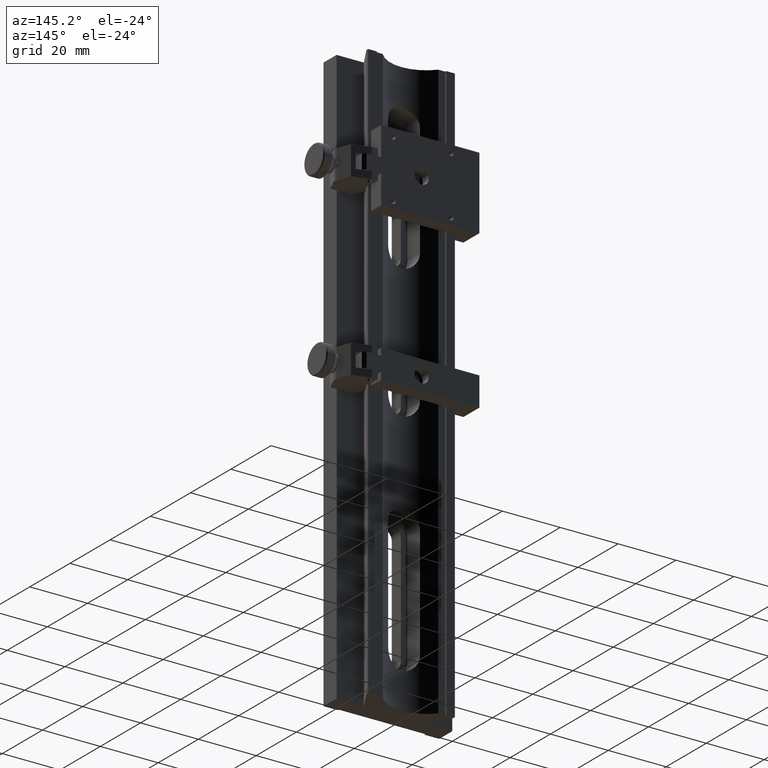
[diagram: clean part render]
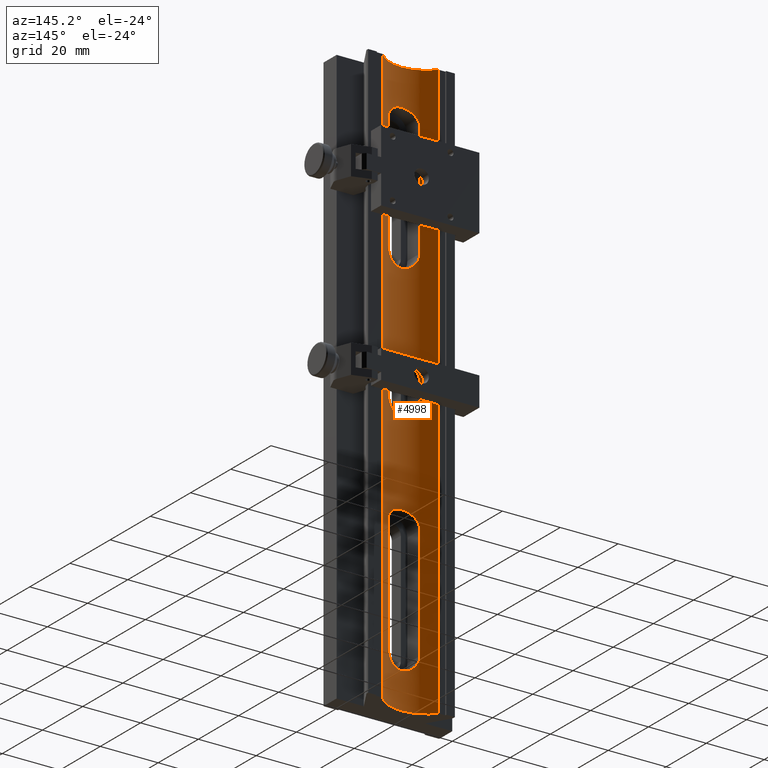
[diagram: same view with one face highlighted and labeled with its STEP entity id]
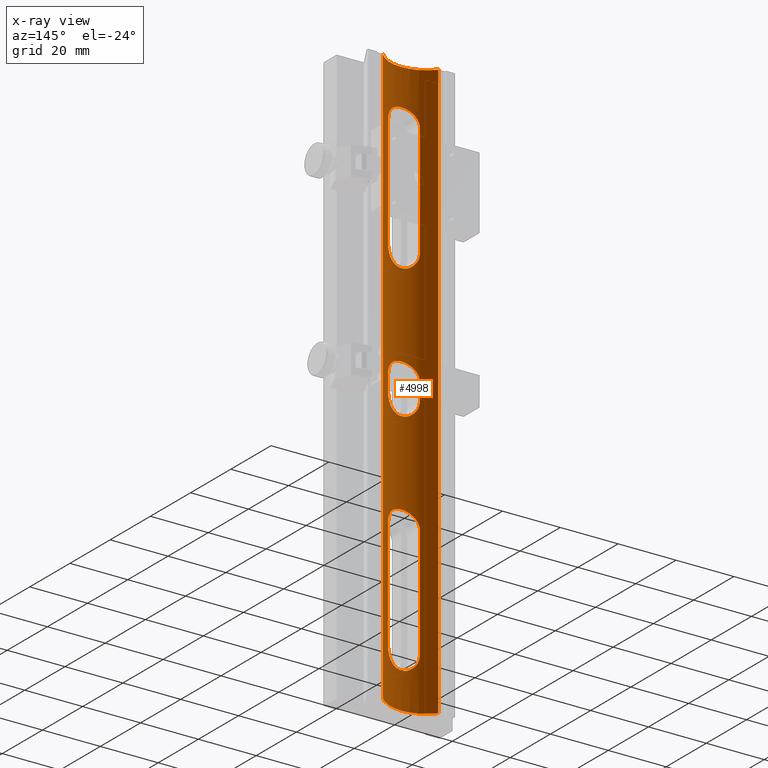
[diagram: x-ray of the same camera — body ghosted, the highlighted face saturated]
A machine part, auxiliary view. The second image highlights one B-rep face of the part: STEP entity #4998.
The next image is the same camera in x-ray: the body ghosted, the highlighted face saturated — about 0% of this face is hidden behind the body in this view.
In plain terms, the highlighted cylindrical surface (partial cylindrical patch) has radius 12.5 mm, axis along (-0, 0, -1).
Its self-contained STEP definition (entity closure, byte-faithful):
#3 = CARTESIAN_POINT ( 'NONE',  ( -5.463371493397496614, -3.729551182237842877, -4.756877311680623777 ) ) ;
#9 = CARTESIAN_POINT ( 'NONE',  ( -2.452909808896963195, 7.936080065970314124, -3.738324891094070956 ) ) ;
#19 = CARTESIAN_POINT ( 'NONE',  ( 5.320886567516182275, 83.43834597298382505, -4.688748875783183223 ) ) ;
#31 = CARTESIAN_POINT ( 'NONE',  ( -2.452909808896961863, 86.93608006597030169, -3.738324891094070956 ) ) ;
#53 = CARTESIAN_POINT ( 'NONE',  ( 5.499999999999998224, -2.999999999999999112, -4.775027839678173791 ) ) ;
#89 = CARTESIAN_POINT ( 'NONE',  ( -9.604686356149272797, 100.0000000000000000, -7.999999999999998224 ) ) ;
#103 = CARTESIAN_POINT ( 'NONE',  ( 4.767077514528521576, 84.76636520187403789, -4.442719698820006613 ) ) ;
#105 = ORIENTED_EDGE ( 'NONE', *, *, #971, .T. ) ;
#108 = CARTESIAN_POINT ( 'NONE',  ( 3.359488323669840515, -7.369307654140524022, -3.956037097100739697 ) ) ;
#121 = DIRECTION ( 'NONE',  ( 0.000000000000000000, 0.000000000000000000, 1.000000000000000000 ) ) ;
#138 = CARTESIAN_POINT ( 'NONE',  ( -5.499999999999996447, -43.00000000000000711, -4.775027839678172015 ) ) ;
#140 = CARTESIAN_POINT ( 'NONE',  ( 4.140132957479329967, -85.63800679282627470, -4.202588055097332465 ) ) ;
#152 = LINE ( 'NONE', #6233, #5776 ) ;
#172 = CARTESIAN_POINT ( 'NONE',  ( 2.455686713790328213, -38.06565600194460330, -3.739010744038295364 ) ) ;
#201 = CARTESIAN_POINT ( 'NONE',  ( -4.664130054569976203, 84.92024005721965807, -4.402269544413258906 ) ) ;
#245 = VERTEX_POINT ( 'NONE', #1573 ) ;
#249 = CARTESIAN_POINT ( 'NONE',  ( 5.499999999999992895, 43.00000000000000711, -4.775027839678172015 ) ) ;
#265 = CARTESIAN_POINT ( 'NONE',  ( -4.927301002126863949, 84.45025479802640689, -4.511737245493968373 ) ) ;
#276 = LINE ( 'NONE', #5670, #2803 ) ;
#281 = CARTESIAN_POINT ( 'NONE',  ( 5.004172744658497152, 40.71086644942840138, -4.545134261420408883 ) ) ;
#344 = CARTESIAN_POINT ( 'NONE',  ( 2.452909808896956090, 38.06391993402971252, -3.738324891094068292 ) ) ;
#368 = CARTESIAN_POINT ( 'NONE',  ( 1.436019803944283968, 37.67844251871879635, -3.577646812477410787 ) ) ;
#426 = CARTESIAN_POINT ( 'NONE',  ( -4.015897234029110585, -85.76216194631959411, -4.161930955679303601 ) ) ;
#428 = CARTESIAN_POINT ( 'NONE',  ( 4.767077514528521576, 5.766365201874045887, -4.442719698820007501 ) ) ;
#446 = VECTOR ( 'NONE', #5460, 1000.000000000000000 ) ;
#461 = CARTESIAN_POINT ( 'NONE',  ( -5.320886567516187604, -83.43834597298386768, -4.688748875783188552 ) ) ;
#462 = CARTESIAN_POINT ( 'NONE',  ( 5.213099869976741907, 4.789608110793816209, -4.637932341751267451 ) ) ;
#494 = CARTESIAN_POINT ( 'NONE',  ( 2.452909808896958754, -86.93608006597033011, -3.738324891094071400 ) ) ;
#495 = CARTESIAN_POINT ( 'NONE',  ( 1.791243918881801678, 8.203307872313336802, -3.627770058525933816 ) ) ;
#503 = CARTESIAN_POINT ( 'NONE',  ( 4.757545737347823156, -5.765466018206599763, -4.440405074606874614 ) ) ;
#517 = CARTESIAN_POINT ( 'NONE',  ( 5.499999999999999112, 82.36839926321866301, -4.775027839678175567 ) ) ;
#528 = CARTESIAN_POINT ( 'NONE',  ( -4.927301002126866614, 5.450254798026421987, -4.511737245493970150 ) ) ;
#555 = CARTESIAN_POINT ( 'NONE',  ( -3.359488323669839183, -38.63069234585947953, -3.956037097100740585 ) ) ;
#556 = CARTESIAN_POINT ( 'NONE',  ( -1.266012518167691336, -8.355390716780018323, -3.562992296828746852 ) ) ;
#561 = CARTESIAN_POINT ( 'NONE',  ( 3.365233826132080885, 7.365085888891295340, -3.957591329563105997 ) ) ;
#582 = CARTESIAN_POINT ( 'NONE',  ( 4.468409719719223183, 85.21173873340197247, -4.325465594975087313 ) ) ;
#588 = CARTESIAN_POINT ( 'NONE',  ( 0.9034421561682076662, -8.428312260402236689, -3.531417676067726052 ) ) ;
#603 = CARTESIAN_POINT ( 'NONE',  ( -5.499999999999996447, -43.00000000000000711, -4.775027839678172015 ) ) ;
#620 = CARTESIAN_POINT ( 'NONE',  ( 4.767077514528521576, -40.23363479812595500, -4.442719698820004837 ) ) ;
#656 = CARTESIAN_POINT ( 'NONE',  ( 4.015897234029108809, -39.23783805368039879, -4.161930955679307154 ) ) ;
#702 = CARTESIAN_POINT ( 'NONE',  ( -2.407148620655123076E-16, 100.0000000000000000, -16.00000000000000000 ) ) ;
#713 = VERTEX_POINT ( 'NONE', #2896 ) ;
#770 = CARTESIAN_POINT ( 'NONE',  ( -0.7318247305610963149, 37.53681207847811407, -3.516321624483726982 ) ) ;
#789 = VERTEX_POINT ( 'NONE', #1530 ) ;
#805 = FACE_OUTER_BOUND ( 'NONE', #1249, .T. ) ;
#819 = LINE ( 'NONE', #3440, #446 ) ;
#835 = CARTESIAN_POINT ( 'NONE',  ( -4.935953207741845539, 40.54735380139051415, -4.514820086043214609 ) ) ;
#868 = CARTESIAN_POINT ( 'NONE',  ( 5.211065515426126282, 41.20492193014368354, -4.637008669236490022 ) ) ;
#920 = LINE ( 'NONE', #3071, #2859 ) ;
#926 = CARTESIAN_POINT ( 'NONE',  ( -0.3716744979042064245, -87.49950246139496812, -3.500218916825645898 ) ) ;
#971 = EDGE_CURVE ( 'NONE', #2517, #5820, #1742, .T. ) ;
#1006 = EDGE_CURVE ( 'NONE', #1562, #2871, #276, .T. ) ;
#1024 = CARTESIAN_POINT ( 'NONE',  ( -1.791243918881801012, -8.203307872313335025, -3.627770058525932484 ) ) ;
#1027 = CARTESIAN_POINT ( 'NONE',  ( -4.767077514528525128, -84.76636520187400947, -4.442719698820010166 ) ) ;
#1028 = CARTESIAN_POINT ( 'NONE',  ( 1.266012518167691558, 8.355390716780021876, -3.562992296828747740 ) ) ;
#1051 = CARTESIAN_POINT ( 'NONE',  ( 1.791243918881798791, 87.20330787231333147, -3.627770058525933816 ) ) ;
#1056 = CARTESIAN_POINT ( 'NONE',  ( 1.960439013360200988, -37.85814081710194046, -3.653553443696078151 ) ) ;
#1057 = CARTESIAN_POINT ( 'NONE',  ( -2.769513885777391771, -7.765350601836939148, -3.806797052175196150 ) ) ;
#1063 = CARTESIAN_POINT ( 'NONE',  ( -5.463268972524251588, 3.732885129696532633, -4.756815190711167318 ) ) ;
#1071 = CARTESIAN_POINT ( 'NONE',  ( 5.211065515426134276, -4.795078069856327119, -4.637008669236497127 ) ) ;
#1082 = B_SPLINE_CURVE_WITH_KNOTS ( 'NONE', 3,
 ( #3490, #5078, #2955, #5569, #462, #3020, #428, #3086, #3989, #4488, #5107, #3456, #561, #5016, #4050, #3955, #495, #5998, #1028, #2490, #6057, #2459, #5540, #2020, #1430, #4521, #1526, #9, #6091, #4084, #3559, #2553, #4582, #3053, #2521, #528, #6485, #5507, #1560, #1063, #1962, #6517 ),
 .UNSPECIFIED., .F., .F.,
 ( 4, 2, 2, 2, 2, 2, 2, 2, 2, 2, 2, 2, 2, 2, 2, 2, 2, 2, 2, 2, 4 ),
 ( 8.673617379884034509E-19, 0.001088223458269292664, 0.002176446916538584461, 0.003264670374807876474, 0.003808782103942523999, 0.004352893833077172391, 0.005441117291346465705, 0.006529340749615759887, 0.007073452478750406544, 0.007617564207885053201, 0.008705787666154346516, 0.009249899395288994908, 0.009794011124423641565, 0.01088223458269293488, 0.01197045804096222993, 0.01305868149923152324, 0.01414690495750081656, 0.01469101668663546321, 0.01523512841577010814, 0.01632335187403940319, 0.01741157533230869303 ),
 .UNSPECIFIED. ) ;
#1089 = CARTESIAN_POINT ( 'NONE',  ( -4.365141366191275019, -39.63500587160994826, -4.284993196813131178 ) ) ;
#1123 = CARTESIAN_POINT ( 'NONE',  ( 3.640810629803842957, -38.86240765947395914, -4.039074654214520166 ) ) ;
#1125 = CARTESIAN_POINT ( 'NONE',  ( 0.1746818680405348989, -8.500241227327972382, -3.499893860054751116 ) ) ;
#1151 = CARTESIAN_POINT ( 'NONE',  ( -5.500000000000003553, -81.99999999999998579, -4.775027839678175567 ) ) ;
#1169 = DIRECTION ( 'NONE',  ( 0.000000000000000000, 0.000000000000000000, 1.000000000000000000 ) ) ;
#1171 = ORIENTED_EDGE ( 'NONE', *, *, #5340, .F. ) ;
#1204 = EDGE_LOOP ( 'NONE', ( #1171, #2426, #6240, #5711 ) ) ;
#1233 = VECTOR ( 'NONE', #3669, 1000.000000000000000 ) ;
#1235 = EDGE_CURVE ( 'NONE', #2843, #4762, #1576, .T. ) ;
#1249 = EDGE_LOOP ( 'NONE', ( #4637, #105, #2922, #4670 ) ) ;
#1295 = CARTESIAN_POINT ( 'NONE',  ( -3.638581638029505960, 86.13962776027645418, -4.038379994050421473 ) ) ;
#1309 = CARTESIAN_POINT ( 'NONE',  ( -1.444167463114252481, 37.68988249381514777, -3.582471709711287922 ) ) ;
#1340 = CARTESIAN_POINT ( 'NONE',  ( -5.213099869976747236, 41.21039188920619267, -4.637932341751268339 ) ) ;
#1360 = ORIENTED_EDGE ( 'NONE', *, *, #1887, .T. ) ;
#1397 = CARTESIAN_POINT ( 'NONE',  ( -5.500000000000003553, -81.99999999999998579, -4.775027839678175567 ) ) ;
#1399 = CARTESIAN_POINT ( 'NONE',  ( -2.769513885777398432, 38.23464939816306440, -3.806797052175195706 ) ) ;
#1430 = CARTESIAN_POINT ( 'NONE',  ( -0.9034421561682078883, 8.428312260402234912, -3.531417676067723832 ) ) ;
#1461 = CARTESIAN_POINT ( 'NONE',  ( -5.463371493397497503, -82.72955118223782733, -4.756877311680622888 ) ) ;
#1503 = CARTESIAN_POINT ( 'NONE',  ( 5.317647263843144678, -4.451570203888886468, -4.687213424654785854 ) ) ;
#1517 = CARTESIAN_POINT ( 'NONE',  ( 5.213099869976747236, 83.78960811079377891, -4.637932341751268339 ) ) ;
#1520 = CARTESIAN_POINT ( 'NONE',  ( -4.360951971730208321, -6.356151466734034194, -4.284773272989577997 ) ) ;
#1526 = CARTESIAN_POINT ( 'NONE',  ( -1.783197991779766678, 8.215540036311200112, -3.623181025438775293 ) ) ;
#1530 = CARTESIAN_POINT ( 'NONE',  ( 9.604686356149276349, 100.0000000000000000, -8.000000000000001776 ) ) ;
#1556 = CARTESIAN_POINT ( 'NONE',  ( -3.640810629803842513, -7.137592340526055956, -4.039074654214520166 ) ) ;
#1560 = CARTESIAN_POINT ( 'NONE',  ( -5.317647263843142902, 4.451570203888886468, -4.687213424654786742 ) ) ;
#1562 = VERTEX_POINT ( 'NONE', #4719 ) ;
#1573 = CARTESIAN_POINT ( 'NONE',  ( -5.499999999999996447, 81.99999999999998579, -4.775027839678172015 ) ) ;
#1576 = B_SPLINE_CURVE_WITH_KNOTS ( 'NONE', 3,
 ( #2453, #4547, #3, #2015, #4044, #4483, #6481, #3622, #1520, #3552, #5565, #1556, #3588, #1057, #1957, #3983, #1024, #5071, #556, #3081, #5101, #1125, #1623, #6156, #588, #3654, #5662, #4149, #2118, #108, #3150, #2613, #4640, #5024, #503, #2061, #4028, #1071, #1503, #2529, #2000, #53 ),
 .UNSPECIFIED., .F., .F.,
 ( 4, 2, 2, 2, 2, 2, 2, 2, 2, 2, 2, 2, 2, 2, 2, 2, 2, 2, 2, 2, 4 ),
 ( 8.673617379884034509E-19, 0.001088223458269295049, 0.002176446916538590098, 0.003264670374807885581, 0.003808782103942532672, 0.004352893833077179329, 0.005441117291346470909, 0.006529340749615763356, 0.007073452478750409146, 0.007617564207885054936, 0.008705787666154348250, 0.009249899395288994908, 0.009794011124423641565, 0.01088223458269293314, 0.01197045804096222993, 0.01305868149923152324, 0.01414690495750081656, 0.01469101668663546321, 0.01523512841577010987, 0.01632335187403940666, 0.01741157533230869997 ),
 .UNSPECIFIED. ) ;
#1582 = CARTESIAN_POINT ( 'NONE',  ( 2.769513885777394879, 86.76535060183691428, -3.806797052175195262 ) ) ;
#1587 = CARTESIAN_POINT ( 'NONE',  ( -0.7235754915566944279, -37.54472744954814800, -3.519625967096238650 ) ) ;
#1590 = ORIENTED_EDGE ( 'NONE', *, *, #3741, .T. ) ;
#1602 = DIRECTION ( 'NONE',  ( -0.000000000000000000, -1.000000000000000000, -0.000000000000000000 ) ) ;
#1617 = CARTESIAN_POINT ( 'NONE',  ( -0.9034421561682086654, 87.42831226040222248, -3.531417676067725608 ) ) ;
#1623 = CARTESIAN_POINT ( 'NONE',  ( 0.3589657864649588581, -8.491329862232156245, -3.503822942303210120 ) ) ;
#1630 = CARTESIAN_POINT ( 'NONE',  ( -2.407148620655123076E-16, -100.0000000000000000, -16.00000000000000000 ) ) ;
#1657 = CARTESIAN_POINT ( 'NONE',  ( -1.436019803944291073, -37.67844251871878924, -3.577646812477412563 ) ) ;
#1691 = CARTESIAN_POINT ( 'NONE',  ( 5.004172744658498928, -84.28913355057159151, -4.545134261420411548 ) ) ;
#1709 = ORIENTED_EDGE ( 'NONE', *, *, #2975, .T. ) ;
#1710 = B_SPLINE_CURVE_WITH_KNOTS ( 'NONE', 3,
 ( #1397, #6516, #1461, #461, #5445, #6056, #1027, #3052, #5077, #4455, #426, #2924, #4520, #2457, #3489, #5475, #6456, #1928, #3954, #5506, #926, #4487, #5539, #5995, #3018, #1990, #5045, #494, #4551, #4082, #5140, #140, #6124, #5598, #3118, #3218, #1691, #2052, #5172, #4746, #2154, #4613 ),
 .UNSPECIFIED., .F., .F.,
 ( 4, 2, 2, 2, 2, 2, 2, 2, 2, 2, 2, 2, 2, 2, 2, 2, 2, 2, 2, 2, 4 ),
 ( 0.000000000000000000, 0.001088223458269344922, 0.002176446916538689845, 0.003264670374808034334, 0.003808782103942690966, 0.004352893833077347598, 0.005441117291346630504, 0.006529340749615912542, 0.007073452478750553128, 0.007617564207885194581, 0.008705787666154466212, 0.009249899395289104195, 0.009794011124423740444, 0.01088223458269300600, 0.01197045804096227156, 0.01305868149923153365, 0.01414690495750079748, 0.01469101668663544587, 0.01523512841577009252, 0.01632335187403938931, 0.01741157533230868609 ),
 .UNSPECIFIED. ) ;
#1722 = CARTESIAN_POINT ( 'NONE',  ( 5.320886567516187604, -41.56165402701616784, -4.688748875783185888 ) ) ;
#1742 = CIRCLE ( 'NONE', #5448, 12.50000000000000000 ) ;
#1751 = CARTESIAN_POINT ( 'NONE',  ( -4.757545737347818715, 84.76546601820658111, -4.440405074606872837 ) ) ;
#1765 = VERTEX_POINT ( 'NONE', #6446 ) ;
#1768 = CARTESIAN_POINT ( 'NONE',  ( -5.500000000000000000, -2.999999999999999112, -4.775027839678175567 ) ) ;
#1778 = LINE ( 'NONE', #3806, #5824 ) ;
#1800 = CARTESIAN_POINT ( 'NONE',  ( 3.638581638029501519, 38.86037223972356713, -4.038379994050420585 ) ) ;
#1887 = EDGE_CURVE ( 'NONE', #1562, #245, #6144, .T. ) ;
#1899 = CARTESIAN_POINT ( 'NONE',  ( -5.500000000000003553, 42.63160073678131567, -4.775027839678174679 ) ) ;
#1910 = ORIENTED_EDGE ( 'NONE', *, *, #1006, .F. ) ;
#1928 = CARTESIAN_POINT ( 'NONE',  ( -1.444167463114249150, -87.31011750618490908, -3.582471709711286589 ) ) ;
#1945 = CARTESIAN_POINT ( 'NONE',  ( 5.499999999999992895, -81.99999999999998579, -4.775027839678172015 ) ) ;
#1957 = CARTESIAN_POINT ( 'NONE',  ( -2.455686713790327325, -7.934343998055414460, -3.739010744038295808 ) ) ;
#1962 = CARTESIAN_POINT ( 'NONE',  ( -5.499999999999997335, 3.368535934802753040, -4.775027839678172903 ) ) ;
#1990 = CARTESIAN_POINT ( 'NONE',  ( 1.436019803944287299, -87.32155748128123207, -3.577646812477411231 ) ) ;
#2000 = CARTESIAN_POINT ( 'NONE',  ( 5.499999999999998224, -3.368535934802752596, -4.775027839678175567 ) ) ;
#2011 = CARTESIAN_POINT ( 'NONE',  ( 4.935953207741847315, 84.45264619860948585, -4.514820086043218161 ) ) ;
#2015 = CARTESIAN_POINT ( 'NONE',  ( -5.320886567516185828, -4.438345972983841037, -4.688748875783186776 ) ) ;
#2020 = CARTESIAN_POINT ( 'NONE',  ( -0.7235754915566959822, 8.455272550451859104, -3.519625967096239538 ) ) ;
#2040 = DIRECTION ( 'NONE',  ( -0.000000000000000000, -1.000000000000000000, -0.000000000000000000 ) ) ;
#2043 = CARTESIAN_POINT ( 'NONE',  ( 4.360951971730209209, 85.35615146673403331, -4.284773272989578885 ) ) ;
#2052 = CARTESIAN_POINT ( 'NONE',  ( 5.211065515426128947, -83.79507806985630225, -4.637008669236494462 ) ) ;
#2061 = CARTESIAN_POINT ( 'NONE',  ( 4.927301002126866614, -5.450254798026417546, -4.511737245493968373 ) ) ;
#2117 = CARTESIAN_POINT ( 'NONE',  ( -0.3589657864649583585, -37.50867013776783665, -3.503822942303210120 ) ) ;
#2118 = CARTESIAN_POINT ( 'NONE',  ( 2.767522286145575716, -7.766322646348289283, -3.806394110068380243 ) ) ;
#2154 = CARTESIAN_POINT ( 'NONE',  ( 5.499999999999990230, -82.36853593480270774, -4.775027839678172015 ) ) ;
#2180 = CARTESIAN_POINT ( 'NONE',  ( -3.359488323669840959, 86.36930765414055600, -3.956037097100740585 ) ) ;
#2186 = CARTESIAN_POINT ( 'NONE',  ( -5.211065515426130723, -41.20492193014369064, -4.637008669236492686 ) ) ;
#2218 = CARTESIAN_POINT ( 'NONE',  ( 5.213099869976746348, -41.21039188920620688, -4.637932341751269227 ) ) ;
#2248 = CARTESIAN_POINT ( 'NONE',  ( -5.004172744658502481, 84.28913355057161993, -4.545134261420411548 ) ) ;
#2263 = LINE ( 'NONE', #3131, #1233 ) ;
#2295 = CARTESIAN_POINT ( 'NONE',  ( -3.640810629803846066, 38.86240765947395914, -4.039074654214519278 ) ) ;
#2325 = CARTESIAN_POINT ( 'NONE',  ( 5.317647263843139349, 41.54842979611112241, -4.687213424654784077 ) ) ;
#2326 = DIRECTION ( 'NONE',  ( 0.000000000000000000, 0.000000000000000000, -1.000000000000000000 ) ) ;
#2361 = CARTESIAN_POINT ( 'NONE',  ( -2.455686713790331765, 38.06565600194459620, -3.739010744038295808 ) ) ;
#2392 = CARTESIAN_POINT ( 'NONE',  ( -5.500000000000003553, 43.00000000000000711, -4.775027839678175567 ) ) ;
#2426 = ORIENTED_EDGE ( 'NONE', *, *, #3040, .T. ) ;
#2453 = CARTESIAN_POINT ( 'NONE',  ( -5.500000000000000000, -2.999999999999999112, -4.775027839678175567 ) ) ;
#2457 = CARTESIAN_POINT ( 'NONE',  ( -2.769513885777397988, -86.76535060183690007, -3.806797052175196150 ) ) ;
#2459 = CARTESIAN_POINT ( 'NONE',  ( -0.1746818680405343160, 8.500241227327974158, -3.499893860054749339 ) ) ;
#2490 = CARTESIAN_POINT ( 'NONE',  ( 0.7318247305610904307, 8.463187921521901913, -3.516321624483725650 ) ) ;
#2517 = VERTEX_POINT ( 'NONE', #4833 ) ;
#2521 = CARTESIAN_POINT ( 'NONE',  ( -4.757545737347821380, 5.765466018206601539, -4.440405074606873725 ) ) ;
#2529 = CARTESIAN_POINT ( 'NONE',  ( 5.463268972524251588, -3.732885129696531745, -4.756815190711167318 ) ) ;
#2542 = CARTESIAN_POINT ( 'NONE',  ( -0.3589657864649583030, 87.49132986223213493, -3.503822942303209675 ) ) ;
#2553 = CARTESIAN_POINT ( 'NONE',  ( -4.140132957479333520, 6.638006792826293356, -4.202588055097335129 ) ) ;
#2577 = CARTESIAN_POINT ( 'NONE',  ( -3.638581638029505072, -38.86037223972356713, -4.038379994050419697 ) ) ;
#2611 = CARTESIAN_POINT ( 'NONE',  ( 1.266012518167693335, -37.64460928321998523, -3.562992296828747740 ) ) ;
#2613 = CARTESIAN_POINT ( 'NONE',  ( 4.140132957479336184, -6.638006792826295133, -4.202588055097336905 ) ) ;
#2645 = CARTESIAN_POINT ( 'NONE',  ( -5.499999999999996447, -42.63146406519724962, -4.775027839678175567 ) ) ;
#2682 = CARTESIAN_POINT ( 'NONE',  ( 1.444167463114248262, -37.68988249381513356, -3.582471709711287478 ) ) ;
#2759 = DIRECTION ( 'NONE',  ( 0.000000000000000000, 1.000000000000000000, 0.000000000000000000 ) ) ;
#2795 = CARTESIAN_POINT ( 'NONE',  ( 4.140132957479325526, 39.36199320717370398, -4.202588055097332465 ) ) ;
#2803 = VECTOR ( 'NONE', #6164, 1000.000000000000000 ) ;
#2809 = EDGE_CURVE ( 'NONE', #245, #2865, #2263, .T. ) ;
#2812 = EDGE_CURVE ( 'NONE', #2517, #789, #152, .T. ) ;
#2814 = CARTESIAN_POINT ( 'NONE',  ( -2.767522286145575716, 86.76632264634825731, -3.806394110068379799 ) ) ;
#2828 = CARTESIAN_POINT ( 'NONE',  ( -3.365233826132087547, 38.63491411110872775, -3.957591329563105997 ) ) ;
#2843 = VERTEX_POINT ( 'NONE', #1768 ) ;
#2859 = VECTOR ( 'NONE', #2040, 1000.000000000000000 ) ;
#2865 = VERTEX_POINT ( 'NONE', #3700 ) ;
#2871 = VERTEX_POINT ( 'NONE', #249 ) ;
#2896 = CARTESIAN_POINT ( 'NONE',  ( 5.500000000000000888, -43.00000000000000711, -4.775027839678175567 ) ) ;
#2922 = ORIENTED_EDGE ( 'NONE', *, *, #6386, .F. ) ;
#2924 = CARTESIAN_POINT ( 'NONE',  ( -3.640810629803846954, -86.13759234052604086, -4.039074654214520166 ) ) ;
#2955 = CARTESIAN_POINT ( 'NONE',  ( 5.463371493397494838, 3.729551182237843321, -4.756877311680622888 ) ) ;
#2975 = EDGE_CURVE ( 'NONE', #2865, #2871, #4336, .T. ) ;
#3018 = CARTESIAN_POINT ( 'NONE',  ( 0.9034421561682031143, -87.42831226040222248, -3.531417676067725608 ) ) ;
#3020 = CARTESIAN_POINT ( 'NONE',  ( 4.935953207741842874, 5.452646198609490291, -4.514820086043215497 ) ) ;
#3028 = ORIENTED_EDGE ( 'NONE', *, *, #3248, .T. ) ;
#3040 = EDGE_CURVE ( 'NONE', #1765, #5873, #1082, .T. ) ;
#3044 = CARTESIAN_POINT ( 'NONE',  ( -1.436019803944293294, 87.32155748128123207, -3.577646812477410343 ) ) ;
#3052 = CARTESIAN_POINT ( 'NONE',  ( -4.468409719719224960, -85.21173873340195826, -4.325465594975087313 ) ) ;
#3053 = CARTESIAN_POINT ( 'NONE',  ( -4.664130054569972650, 5.920240057219704255, -4.402269544413257130 ) ) ;
#3071 = CARTESIAN_POINT ( 'NONE',  ( 5.500000000000027534, 100.0000000000000000, -4.775027839678187114 ) ) ;
#3076 = CARTESIAN_POINT ( 'NONE',  ( 0.3716744979042008734, 87.49950246139496812, -3.500218916825644122 ) ) ;
#3080 = CARTESIAN_POINT ( 'NONE',  ( 4.468409719719220519, -39.78826126659801332, -4.325465594975083761 ) ) ;
#3081 = CARTESIAN_POINT ( 'NONE',  ( -0.7318247305610900977, -8.463187921521903689, -3.516321624483726538 ) ) ;
#3086 = CARTESIAN_POINT ( 'NONE',  ( 4.468409719719223183, 6.211738733401981349, -4.325465594975085537 ) ) ;
#3111 = ORIENTED_EDGE ( 'NONE', *, *, #4104, .F. ) ;
#3113 = CARTESIAN_POINT ( 'NONE',  ( 4.134927261176863489, -39.36901785846102797, -4.203101428351041946 ) ) ;
#3118 = CARTESIAN_POINT ( 'NONE',  ( 4.757545737347808057, -84.76546601820662374, -4.440405074606869285 ) ) ;
#3131 = CARTESIAN_POINT ( 'NONE',  ( -5.499999999999992895, 100.0000000000000000, -4.775027839678172015 ) ) ;
#3134 = CARTESIAN_POINT ( 'NONE',  ( 5.499999999999998224, -2.999999999999999112, -4.775027839678173791 ) ) ;
#3148 = CARTESIAN_POINT ( 'NONE',  ( -4.757545737347822268, -40.23453398179340468, -4.440405074606873725 ) ) ;
#3150 = CARTESIAN_POINT ( 'NONE',  ( 3.638581638029509069, -7.139627760276442636, -4.038379994050423250 ) ) ;
#3173 = AXIS2_PLACEMENT_3D ( 'NONE', #702, #1602, #121 ) ;
#3188 = DIRECTION ( 'NONE',  ( -0.000000000000000000, -1.000000000000000000, -0.000000000000000000 ) ) ;
#3216 = CARTESIAN_POINT ( 'NONE',  ( 0.7318247305610924291, -37.53681207847809986, -3.516321624483726982 ) ) ;
#3218 = CARTESIAN_POINT ( 'NONE',  ( 4.927301002126852403, -84.45025479802643531, -4.511737245493963933 ) ) ;
#3246 = CARTESIAN_POINT ( 'NONE',  ( -5.499999999999996447, 82.36853593480272195, -4.775027839678173791 ) ) ;
#3248 = EDGE_CURVE ( 'NONE', #4837, #4358, #1778, .T. ) ;
#3317 = CARTESIAN_POINT ( 'NONE',  ( -5.463268972524250700, 82.73288512969651265, -4.756815190711169095 ) ) ;
#3333 = CARTESIAN_POINT ( 'NONE',  ( 4.757545737347820491, 40.23453398179342599, -4.440405074606875502 ) ) ;
#3369 = CARTESIAN_POINT ( 'NONE',  ( -1.791243918881807229, 37.79669212768666853, -3.627770058525935148 ) ) ;
#3398 = CARTESIAN_POINT ( 'NONE',  ( 3.359488323669831633, 38.63069234585949374, -3.956037097100739697 ) ) ;
#3410 = VERTEX_POINT ( 'NONE', #89 ) ;
#3416 = EDGE_CURVE ( 'NONE', #789, #3410, #6138, .T. ) ;
#3428 = CARTESIAN_POINT ( 'NONE',  ( 0.1746818680405272106, 37.49975877267201696, -3.499893860054750228 ) ) ;
#3429 = FACE_BOUND ( 'NONE', #6033, .T. ) ;
#3440 = CARTESIAN_POINT ( 'NONE',  ( -9.604686356149272797, 100.0000000000000000, -7.999999999999998224 ) ) ;
#3456 = CARTESIAN_POINT ( 'NONE',  ( 3.640810629803842513, 7.137592340526056844, -4.039074654214519278 ) ) ;
#3489 = CARTESIAN_POINT ( 'NONE',  ( -2.455686713790333986, -86.93434399805538249, -3.739010744038295364 ) ) ;
#3490 = CARTESIAN_POINT ( 'NONE',  ( 5.500000000000000000, 3.000000000000000000, -4.775027839678175567 ) ) ;
#3547 = CARTESIAN_POINT ( 'NONE',  ( 2.455686713790329989, 86.93434399805539670, -3.739010744038296252 ) ) ;
#3552 = CARTESIAN_POINT ( 'NONE',  ( -4.134927261176860824, -6.630982141538985353, -4.203101428351038393 ) ) ;
#3559 = CARTESIAN_POINT ( 'NONE',  ( -3.638581638029507292, 7.139627760276445301, -4.038379994050424138 ) ) ;
#3583 = CARTESIAN_POINT ( 'NONE',  ( 3.365233826132083550, 86.36508588889128646, -3.957591329563104221 ) ) ;
#3588 = CARTESIAN_POINT ( 'NONE',  ( -3.365233826132081330, -7.365085888891296229, -3.957591329563105109 ) ) ;
#3615 = CARTESIAN_POINT ( 'NONE',  ( 4.134927261176862601, 85.63098214153897914, -4.203101428351040170 ) ) ;
#3621 = CARTESIAN_POINT ( 'NONE',  ( -0.9034421561682070001, -37.57168773959777042, -3.531417676067726497 ) ) ;
#3622 = CARTESIAN_POINT ( 'NONE',  ( -4.468409719719221407, -6.211738733401978685, -4.325465594975085537 ) ) ;
#3650 = CARTESIAN_POINT ( 'NONE',  ( -0.1746818680405350377, 87.50024122732797593, -3.499893860054750672 ) ) ;
#3653 = CARTESIAN_POINT ( 'NONE',  ( -4.664130054569973538, -40.07975994278031351, -4.402269544413256241 ) ) ;
#3654 = CARTESIAN_POINT ( 'NONE',  ( 1.436019803944291295, -8.321557481281223190, -3.577646812477410787 ) ) ;
#3669 = DIRECTION ( 'NONE',  ( -0.000000000000000000, -1.000000000000000000, -0.000000000000000000 ) ) ;
#3683 = CARTESIAN_POINT ( 'NONE',  ( -5.499999999999996447, 81.99999999999998579, -4.775027839678172015 ) ) ;
#3700 = CARTESIAN_POINT ( 'NONE',  ( -5.500000000000003553, 43.00000000000000711, -4.775027839678175567 ) ) ;
#3741 = EDGE_CURVE ( 'NONE', #4358, #6493, #1710, .T. ) ;
#3752 = CARTESIAN_POINT ( 'NONE',  ( 2.769513885777393991, -38.23464939816307862, -3.806797052175195262 ) ) ;
#3798 = CARTESIAN_POINT ( 'NONE',  ( -0.3716744979042098107, 37.50049753860505319, -3.500218916825644122 ) ) ;
#3806 = CARTESIAN_POINT ( 'NONE',  ( -5.499999999999968914, 100.0000000000000000, -4.775027839678159580 ) ) ;
#3833 = CARTESIAN_POINT ( 'NONE',  ( 4.365141366191272354, 39.63500587160996247, -4.284993196813131178 ) ) ;
#3894 = VECTOR ( 'NONE', #5020, 1000.000000000000000 ) ;
#3900 = CARTESIAN_POINT ( 'NONE',  ( 2.767522286145564614, 38.23367735365172848, -3.806394110068378467 ) ) ;
#3901 = DIRECTION ( 'NONE',  ( -0.000000000000000000, -1.000000000000000000, -0.000000000000000000 ) ) ;
#3906 = DIRECTION ( 'NONE',  ( -0.000000000000000000, -1.000000000000000000, -0.000000000000000000 ) ) ;
#3927 = CARTESIAN_POINT ( 'NONE',  ( -4.360951971730213650, 39.64384853326597380, -4.284773272989582438 ) ) ;
#3954 = CARTESIAN_POINT ( 'NONE',  ( -1.266012518167698664, -87.35539071678002188, -3.562992296828748184 ) ) ;
#3955 = CARTESIAN_POINT ( 'NONE',  ( 1.960439013360200544, 8.141859182898075531, -3.653553443696079039 ) ) ;
#3983 = CARTESIAN_POINT ( 'NONE',  ( -1.960439013360199656, -8.141859182898073755, -3.653553443696079039 ) ) ;
#3989 = CARTESIAN_POINT ( 'NONE',  ( 4.360951971730209209, 6.356151466734035083, -4.284773272989579773 ) ) ;
#4028 = CARTESIAN_POINT ( 'NONE',  ( 5.004172744658503369, -5.289133550571616382, -4.545134261420414212 ) ) ;
#4044 = CARTESIAN_POINT ( 'NONE',  ( -5.213099869976743683, -4.789608110793815321, -4.637932341751267451 ) ) ;
#4050 = CARTESIAN_POINT ( 'NONE',  ( 2.455686713790327325, 7.934343998055410907, -3.739010744038294032 ) ) ;
#4082 = CARTESIAN_POINT ( 'NONE',  ( 3.359488323669835186, -86.36930765414051336, -3.956037097100738809 ) ) ;
#4084 = CARTESIAN_POINT ( 'NONE',  ( -3.359488323669840515, 7.369307654140522246, -3.956037097100739697 ) ) ;
#4104 = EDGE_CURVE ( 'NONE', #713, #6493, #920, .T. ) ;
#4110 = CARTESIAN_POINT ( 'NONE',  ( 3.640810629803844289, 86.13759234052602665, -4.039074654214521054 ) ) ;
#4142 = CARTESIAN_POINT ( 'NONE',  ( 4.015897234029108809, 85.76216194631962253, -4.161930955679308930 ) ) ;
#4149 = CARTESIAN_POINT ( 'NONE',  ( 2.452909808896964527, -7.936080065970314124, -3.738324891094070956 ) ) ;
#4155 = CARTESIAN_POINT ( 'NONE',  ( -9.604686356149272797, -100.0000000000000000, -7.999999999999998224 ) ) ;
#4177 = CARTESIAN_POINT ( 'NONE',  ( 0.3716744979042034269, -37.50049753860505319, -3.500218916825644566 ) ) ;
#4212 = CARTESIAN_POINT ( 'NONE',  ( -5.317647263843142014, -41.54842979611112952, -4.687213424654785854 ) ) ;
#4215 = CARTESIAN_POINT ( 'NONE',  ( 5.500000000000018652, 100.0000000000000000, -4.775027839678184449 ) ) ;
#4241 = CARTESIAN_POINT ( 'NONE',  ( -5.211065515426130723, 83.79507806985630225, -4.637008669236496239 ) ) ;
#4247 = CARTESIAN_POINT ( 'NONE',  ( 4.360951971730208321, -39.64384853326596669, -4.284773272989579773 ) ) ;
#4326 = CARTESIAN_POINT ( 'NONE',  ( 5.499999999999992895, 42.63146406519724962, -4.775027839678173791 ) ) ;
#4336 = B_SPLINE_CURVE_WITH_KNOTS ( 'NONE', 3,
 ( #2392, #1899, #6457, #6396, #1340, #835, #5319, #6430, #3927, #5938, #4948, #2295, #2828, #1399, #2361, #4854, #3369, #1309, #4822, #770, #3798, #3428, #4886, #5446, #5907, #368, #6331, #344, #3900, #3398, #1800, #2795, #3833, #5384, #3333, #4424, #281, #868, #2325, #4392, #4326, #5413 ),
 .UNSPECIFIED., .F., .F.,
 ( 4, 2, 2, 2, 2, 2, 2, 2, 2, 2, 2, 2, 2, 2, 2, 2, 2, 2, 2, 2, 4 ),
 ( 0.000000000000000000, 0.001088223458269282472, 0.002176446916538564945, 0.003264670374807846984, 0.003808782103942496243, 0.004352893833077145502, 0.005441117291346442286, 0.006529340749615738203, 0.007073452478750387462, 0.007617564207885034987, 0.008705787666154327434, 0.009249899395288974091, 0.009794011124423620748, 0.01088223458269291406, 0.01197045804096220391, 0.01305868149923149202, 0.01414690495750078360, 0.01469101668663542852, 0.01523512841577007344, 0.01632335187403938584, 0.01741157533230869303 ),
 .UNSPECIFIED. ) ;
#4358 = VERTEX_POINT ( 'NONE', #1151 ) ;
#4392 = CARTESIAN_POINT ( 'NONE',  ( 5.463268972524247147, 42.26711487030347314, -4.756815190711163766 ) ) ;
#4424 = CARTESIAN_POINT ( 'NONE',  ( 4.927301002126863949, 40.54974520197361443, -4.511737245493968373 ) ) ;
#4455 = CARTESIAN_POINT ( 'NONE',  ( -4.134927261176867042, -85.63098214153897914, -4.203101428351041058 ) ) ;
#4461 = B_SPLINE_CURVE_WITH_KNOTS ( 'NONE', 3,
 ( #6219, #6186, #5237, #1722, #2218, #6119, #620, #3080, #4247, #3113, #656, #1123, #6254, #3752, #172, #1056, #5100, #2682, #2611, #3216, #4177, #4639, #2117, #1587, #3621, #1657, #5693, #5203, #5625, #555, #2577, #6155, #1089, #3653, #3148, #4706, #5170, #2186, #4212, #4673, #2645, #138 ),
 .UNSPECIFIED., .F., .F.,
 ( 4, 2, 2, 2, 2, 2, 2, 2, 2, 2, 2, 2, 2, 2, 2, 2, 2, 2, 2, 2, 4 ),
 ( 0.000000000000000000, 0.001088223458269273582, 0.002176446916538547164, 0.003264670374807820529, 0.003808782103942466319, 0.004352893833077112543, 0.005441117291346404122, 0.006529340749615695702, 0.007073452478750341492, 0.007617564207884986414, 0.008705787666154282331, 0.009249899395288930723, 0.009794011124423579115, 0.01088223458269287590, 0.01197045804096217268, 0.01305868149923146947, 0.01414690495750076625, 0.01469101668663541464, 0.01523512841577006130, 0.01632335187403937890, 0.01741157533230869303 ),
 .UNSPECIFIED. ) ;
#4483 = CARTESIAN_POINT ( 'NONE',  ( -4.935953207741842874, -5.452646198609489403, -4.514820086043212832 ) ) ;
#4487 = CARTESIAN_POINT ( 'NONE',  ( 0.1746818680405289315, -87.50024122732797593, -3.499893860054750672 ) ) ;
#4488 = CARTESIAN_POINT ( 'NONE',  ( 4.134927261176862601, 6.630982141538984465, -4.203101428351038393 ) ) ;
#4520 = CARTESIAN_POINT ( 'NONE',  ( -3.365233826132087547, -86.36508588889130067, -3.957591329563106886 ) ) ;
#4521 = CARTESIAN_POINT ( 'NONE',  ( -1.436019803944291295, 8.321557481281221413, -3.577646812477409899 ) ) ;
#4543 = CARTESIAN_POINT ( 'NONE',  ( 5.463371493397494838, 82.72955118223782733, -4.756877311680620224 ) ) ;
#4547 = CARTESIAN_POINT ( 'NONE',  ( -5.500000000000002665, -3.368399263218690987, -4.775027839678177344 ) ) ;
#4551 = CARTESIAN_POINT ( 'NONE',  ( 2.767522286145572608, -86.76632264634828573, -3.806394110068378467 ) ) ;
#4573 = CARTESIAN_POINT ( 'NONE',  ( -1.783197991779765790, 87.21554003631119656, -3.623181025438775738 ) ) ;
#4582 = CARTESIAN_POINT ( 'NONE',  ( -4.365141366191275907, 6.364994128390052630, -4.284993196813133842 ) ) ;
#4603 = CARTESIAN_POINT ( 'NONE',  ( 1.960439013360203209, 87.14185918289810218, -3.653553443696079928 ) ) ;
#4613 = CARTESIAN_POINT ( 'NONE',  ( 5.499999999999992895, -81.99999999999998579, -4.775027839678172015 ) ) ;
#4618 = LINE ( 'NONE', #6096, #3894 ) ;
#4635 = CARTESIAN_POINT ( 'NONE',  ( 1.444167463114244931, 87.31011750618489486, -3.582471709711285257 ) ) ;
#4637 = ORIENTED_EDGE ( 'NONE', *, *, #2812, .F. ) ;
#4639 = CARTESIAN_POINT ( 'NONE',  ( -0.1746818680405329838, -37.49975877267203117, -3.499893860054751116 ) ) ;
#4640 = CARTESIAN_POINT ( 'NONE',  ( 4.365141366191275019, -6.364994128390050854, -4.284993196813132066 ) ) ;
#4670 = ORIENTED_EDGE ( 'NONE', *, *, #3416, .F. ) ;
#4673 = CARTESIAN_POINT ( 'NONE',  ( -5.463268972524249811, -42.26711487030347314, -4.756815190711166430 ) ) ;
#4706 = CARTESIAN_POINT ( 'NONE',  ( -4.927301002126865725, -40.54974520197360022, -4.511737245493966597 ) ) ;
#4719 = CARTESIAN_POINT ( 'NONE',  ( 5.500000000000000888, 81.99999999999998579, -4.775027839678175567 ) ) ;
#4729 = AXIS2_PLACEMENT_3D ( 'NONE', #6332, #3901, #2326 ) ;
#4730 = EDGE_LOOP ( 'NONE', ( #1910, #1360, #5588, #1709 ) ) ;
#4746 = CARTESIAN_POINT ( 'NONE',  ( 5.463268972524247147, -82.73288512969652686, -4.756815190711165542 ) ) ;
#4762 = VERTEX_POINT ( 'NONE', #3134 ) ;
#4807 = CARTESIAN_POINT ( 'NONE',  ( -4.140132957479332632, 85.63800679282628892, -4.202588055097336017 ) ) ;
#4822 = CARTESIAN_POINT ( 'NONE',  ( -1.266012518167698664, 37.64460928322001365, -3.562992296828748628 ) ) ;
#4833 = CARTESIAN_POINT ( 'NONE',  ( 9.604686356149276349, -100.0000000000000000, -8.000000000000001776 ) ) ;
#4837 = VERTEX_POINT ( 'NONE', #603 ) ;
#4854 = CARTESIAN_POINT ( 'NONE',  ( -1.960439013360203653, 37.85814081710193335, -3.653553443696079928 ) ) ;
#4886 = CARTESIAN_POINT ( 'NONE',  ( 0.3589657864649522523, 37.50867013776784376, -3.503822942303211008 ) ) ;
#4887 = FACE_BOUND ( 'NONE', #1204, .T. ) ;
#4948 = CARTESIAN_POINT ( 'NONE',  ( -4.015897234029112361, 39.23783805368037747, -4.161930955679305377 ) ) ;
#4998 = ADVANCED_FACE ( 'NONE', ( #4887, #3429, #5804, #805 ), #5447, .F. ) ;
#5016 = CARTESIAN_POINT ( 'NONE',  ( 2.769513885777391771, 7.765350601836939148, -3.806797052175196150 ) ) ;
#5020 = DIRECTION ( 'NONE',  ( -0.000000000000000000, -1.000000000000000000, -0.000000000000000000 ) ) ;
#5024 = CARTESIAN_POINT ( 'NONE',  ( 4.664130054569975314, -5.920240057219700702, -4.402269544413255353 ) ) ;
#5045 = CARTESIAN_POINT ( 'NONE',  ( 1.783197991779760461, -87.21554003631119656, -3.623181025438774849 ) ) ;
#5071 = CARTESIAN_POINT ( 'NONE',  ( -1.444167463114247374, -8.310117506184880654, -3.582471709711284369 ) ) ;
#5077 = CARTESIAN_POINT ( 'NONE',  ( -4.360951971730211874, -85.35615146673404752, -4.284773272989582438 ) ) ;
#5078 = CARTESIAN_POINT ( 'NONE',  ( 5.500000000000000000, 3.368399263218692319, -4.775027839678176456 ) ) ;
#5100 = CARTESIAN_POINT ( 'NONE',  ( 1.791243918881802344, -37.79669212768666853, -3.627770058525935148 ) ) ;
#5101 = CARTESIAN_POINT ( 'NONE',  ( -0.3716744979042028163, -8.499502461394966346, -3.500218916825644566 ) ) ;
#5107 = CARTESIAN_POINT ( 'NONE',  ( 4.015897234029106144, 6.762161946319630523, -4.161930955679303601 ) ) ;
#5140 = CARTESIAN_POINT ( 'NONE',  ( 3.638581638029502408, -86.13962776027642576, -4.038379994050419697 ) ) ;
#5170 = CARTESIAN_POINT ( 'NONE',  ( -5.004172744658498040, -40.71086644942839428, -4.545134261420408883 ) ) ;
#5172 = CARTESIAN_POINT ( 'NONE',  ( 5.317647263843139349, -83.45157020388887759, -4.687213424654783189 ) ) ;
#5203 = CARTESIAN_POINT ( 'NONE',  ( -2.452909808896960975, -38.06391993402970542, -3.738324891094069180 ) ) ;
#5237 = CARTESIAN_POINT ( 'NONE',  ( 5.463371493397494838, -42.27044881776215846, -4.756877311680622000 ) ) ;
#5319 = CARTESIAN_POINT ( 'NONE',  ( -4.767077514528525128, 40.23363479812596211, -4.442719698820008389 ) ) ;
#5340 = EDGE_CURVE ( 'NONE', #1765, #4762, #5665, .T. ) ;
#5384 = CARTESIAN_POINT ( 'NONE',  ( 4.664130054569969985, 40.07975994278032061, -4.402269544413252689 ) ) ;
#5413 = CARTESIAN_POINT ( 'NONE',  ( 5.499999999999992895, 43.00000000000000711, -4.775027839678172015 ) ) ;
#5445 = CARTESIAN_POINT ( 'NONE',  ( -5.213099869976751677, -83.78960811079379312, -4.637932341751268339 ) ) ;
#5446 = CARTESIAN_POINT ( 'NONE',  ( 0.7235754915566893208, 37.54472744954816221, -3.519625967096239982 ) ) ;
#5447 = CYLINDRICAL_SURFACE ( 'NONE', #4729, 12.50000000000000000 ) ;
#5448 = AXIS2_PLACEMENT_3D ( 'NONE', #1630, #5798, #1169 ) ;
#5460 = DIRECTION ( 'NONE',  ( -0.000000000000000000, -1.000000000000000000, -0.000000000000000000 ) ) ;
#5475 = CARTESIAN_POINT ( 'NONE',  ( -1.960439013360207428, -87.14185918289810218, -3.653553443696081260 ) ) ;
#5506 = CARTESIAN_POINT ( 'NONE',  ( -0.7318247305610970921, -87.46318792152190724, -3.516321624483727426 ) ) ;
#5507 = CARTESIAN_POINT ( 'NONE',  ( -5.211065515426131611, 4.795078069856329783, -4.637008669236494462 ) ) ;
#5539 = CARTESIAN_POINT ( 'NONE',  ( 0.3589657864649527519, -87.49132986223213493, -3.503822942303210120 ) ) ;
#5540 = CARTESIAN_POINT ( 'NONE',  ( -0.3589657864649591357, 8.491329862232156245, -3.503822942303210120 ) ) ;
#5565 = CARTESIAN_POINT ( 'NONE',  ( -4.015897234029107032, -6.762161946319629635, -4.161930955679302713 ) ) ;
#5569 = CARTESIAN_POINT ( 'NONE',  ( 5.320886567516184940, 4.438345972983839260, -4.688748875783184999 ) ) ;
#5588 = ORIENTED_EDGE ( 'NONE', *, *, #2809, .T. ) ;
#5598 = CARTESIAN_POINT ( 'NONE',  ( 4.664130054569971762, -84.92024005721967228, -4.402269544413255353 ) ) ;
#5621 = CARTESIAN_POINT ( 'NONE',  ( -0.7235754915566948720, 87.45527255045182358, -3.519625967096239538 ) ) ;
#5625 = CARTESIAN_POINT ( 'NONE',  ( -2.767522286145575716, -38.23367735365172138, -3.806394110068378023 ) ) ;
#5662 = CARTESIAN_POINT ( 'NONE',  ( 1.783197991779767788, -8.215540036311200112, -3.623181025438774405 ) ) ;
#5665 = LINE ( 'NONE', #4215, #6092 ) ;
#5670 = CARTESIAN_POINT ( 'NONE',  ( 5.500000000000004441, 100.0000000000000000, -4.775027839678177344 ) ) ;
#5688 = EDGE_CURVE ( 'NONE', #5873, #2843, #4618, .T. ) ;
#5693 = CARTESIAN_POINT ( 'NONE',  ( -1.783197991779765568, -37.78445996368881765, -3.623181025438773073 ) ) ;
#5699 = CARTESIAN_POINT ( 'NONE',  ( -5.499999999999998224, 3.000000000000000888, -4.775027839678173791 ) ) ;
#5711 = ORIENTED_EDGE ( 'NONE', *, *, #1235, .T. ) ;
#5776 = VECTOR ( 'NONE', #2759, 1000.000000000000000 ) ;
#5788 = CARTESIAN_POINT ( 'NONE',  ( -4.365141366191279459, 85.36499412839008016, -4.284993196813136507 ) ) ;
#5798 = DIRECTION ( 'NONE',  ( -0.000000000000000000, -1.000000000000000000, -0.000000000000000000 ) ) ;
#5804 = FACE_BOUND ( 'NONE', #4730, .T. ) ;
#5820 = VERTEX_POINT ( 'NONE', #4155 ) ;
#5824 = VECTOR ( 'NONE', #3906, 1000.000000000000000 ) ;
#5873 = VERTEX_POINT ( 'NONE', #5699 ) ;
#5888 = ORIENTED_EDGE ( 'NONE', *, *, #6354, .T. ) ;
#5907 = CARTESIAN_POINT ( 'NONE',  ( 0.9034421561682006718, 37.57168773959777752, -3.531417676067726497 ) ) ;
#5938 = CARTESIAN_POINT ( 'NONE',  ( -4.134927261176867042, 39.36901785846102086, -4.203101428351042834 ) ) ;
#5995 = CARTESIAN_POINT ( 'NONE',  ( 0.7235754915566893208, -87.45527255045182358, -3.519625967096238650 ) ) ;
#5998 = CARTESIAN_POINT ( 'NONE',  ( 1.444167463114247152, 8.310117506184877101, -3.582471709711284813 ) ) ;
#6033 = EDGE_LOOP ( 'NONE', ( #3111, #5888, #3028, #1590 ) ) ;
#6046 = CARTESIAN_POINT ( 'NONE',  ( 5.500000000000000888, 81.99999999999998579, -4.775027839678175567 ) ) ;
#6056 = CARTESIAN_POINT ( 'NONE',  ( -4.935953207741848203, -84.45264619860947164, -4.514820086043214609 ) ) ;
#6057 = CARTESIAN_POINT ( 'NONE',  ( 0.3716744979042023722, 8.499502461394964570, -3.500218916825642790 ) ) ;
#6091 = CARTESIAN_POINT ( 'NONE',  ( -2.767522286145573940, 7.766322646348286618, -3.806394110068379355 ) ) ;
#6092 = VECTOR ( 'NONE', #3188, 1000.000000000000000 ) ;
#6096 = CARTESIAN_POINT ( 'NONE',  ( -5.499999999999979572, 100.0000000000000000, -4.775027839678164909 ) ) ;
#6113 = CARTESIAN_POINT ( 'NONE',  ( 1.266012518167692447, 87.35539071678000766, -3.562992296828746408 ) ) ;
#6119 = CARTESIAN_POINT ( 'NONE',  ( 4.935953207741844651, -40.54735380139052836, -4.514820086043214609 ) ) ;
#6124 = CARTESIAN_POINT ( 'NONE',  ( 4.365141366191276795, -85.36499412839003753, -4.284993196813133842 ) ) ;
#6138 = CIRCLE ( 'NONE', #3173, 12.50000000000000000 ) ;
#6144 = B_SPLINE_CURVE_WITH_KNOTS ( 'NONE', 3,
 ( #6046, #517, #4543, #19, #1517, #2011, #103, #582, #2043, #3615, #4142, #4110, #3583, #1582, #3547, #4603, #1051, #4635, #6113, #6150, #3076, #3650, #2542, #5621, #1617, #3044, #4573, #31, #2814, #2180, #1295, #4807, #5788, #201, #1751, #265, #2248, #4241, #6282, #3317, #3246, #3683 ),
 .UNSPECIFIED., .F., .F.,
 ( 4, 2, 2, 2, 2, 2, 2, 2, 2, 2, 2, 2, 2, 2, 2, 2, 2, 2, 2, 2, 4 ),
 ( 0.000000000000000000, 0.001088223458269344272, 0.002176446916538688544, 0.003264670374808032599, 0.003808782103942688797, 0.004352893833077344996, 0.005441117291346627902, 0.006529340749615909940, 0.007073452478750550526, 0.007617564207885190244, 0.008705787666154464477, 0.009249899395289100726, 0.009794011124423738709, 0.01088223458269300427, 0.01197045804096226983, 0.01305868149923153365, 0.01414690495750079921, 0.01469101668663544760, 0.01523512841577009599, 0.01632335187403939625, 0.01741157533230869303 ),
 .UNSPECIFIED. ) ;
#6150 = CARTESIAN_POINT ( 'NONE',  ( 0.7318247305610907638, 87.46318792152187882, -3.516321624483725650 ) ) ;
#6155 = CARTESIAN_POINT ( 'NONE',  ( -4.140132957479329967, -39.36199320717369687, -4.202588055097333353 ) ) ;
#6156 = CARTESIAN_POINT ( 'NONE',  ( 0.7235754915566964263, -8.455272550451859104, -3.519625967096239538 ) ) ;
#6164 = DIRECTION ( 'NONE',  ( -0.000000000000000000, -1.000000000000000000, -0.000000000000000000 ) ) ;
#6186 = CARTESIAN_POINT ( 'NONE',  ( 5.500000000000001776, -42.63160073678131567, -4.775027839678177344 ) ) ;
#6219 = CARTESIAN_POINT ( 'NONE',  ( 5.500000000000000888, -43.00000000000000711, -4.775027839678175567 ) ) ;
#6233 = CARTESIAN_POINT ( 'NONE',  ( 9.604686356149276349, 100.0000000000000000, -8.000000000000001776 ) ) ;
#6240 = ORIENTED_EDGE ( 'NONE', *, *, #5688, .T. ) ;
#6254 = CARTESIAN_POINT ( 'NONE',  ( 3.365233826132083106, -38.63491411110872065, -3.957591329563103333 ) ) ;
#6282 = CARTESIAN_POINT ( 'NONE',  ( -5.317647263843144678, 83.45157020388887759, -4.687213424654789407 ) ) ;
#6331 = CARTESIAN_POINT ( 'NONE',  ( 1.783197991779759128, 37.78445996368881055, -3.623181025438773961 ) ) ;
#6332 = CARTESIAN_POINT ( 'NONE',  ( -2.407148620655123076E-16, 100.0000000000000000, -16.00000000000000000 ) ) ;
#6354 = EDGE_CURVE ( 'NONE', #713, #4837, #4461, .T. ) ;
#6386 = EDGE_CURVE ( 'NONE', #3410, #5820, #819, .T. ) ;
#6396 = CARTESIAN_POINT ( 'NONE',  ( -5.320886567516187604, 41.56165402701616074, -4.688748875783186776 ) ) ;
#6430 = CARTESIAN_POINT ( 'NONE',  ( -4.468409719719224960, 39.78826126659804174, -4.325465594975086425 ) ) ;
#6446 = CARTESIAN_POINT ( 'NONE',  ( 5.500000000000000000, 3.000000000000000000, -4.775027839678175567 ) ) ;
#6456 = CARTESIAN_POINT ( 'NONE',  ( -1.791243918881803454, -87.20330787231334568, -3.627770058525935148 ) ) ;
#6457 = CARTESIAN_POINT ( 'NONE',  ( -5.463371493397498391, 42.27044881776216556, -4.756877311680624665 ) ) ;
#6481 = CARTESIAN_POINT ( 'NONE',  ( -4.767077514528522464, -5.766365201874046775, -4.442719698820006613 ) ) ;
#6485 = CARTESIAN_POINT ( 'NONE',  ( -5.004172744658502481, 5.289133550571618159, -4.545134261420411548 ) ) ;
#6493 = VERTEX_POINT ( 'NONE', #1945 ) ;
#6516 = CARTESIAN_POINT ( 'NONE',  ( -5.500000000000004441, -82.36839926321867722, -4.775027839678177344 ) ) ;
#6517 = CARTESIAN_POINT ( 'NONE',  ( -5.499999999999998224, 3.000000000000000888, -4.775027839678173791 ) ) ;